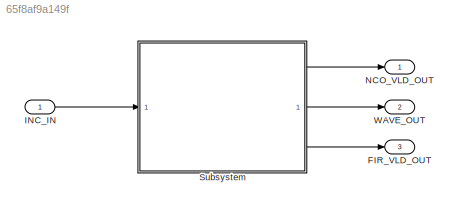
MODEL slx_65f8af9a149f
KIND model
CONFIG AbsTol = auto
CONFIG EnableMultiTasking = off
CONFIG FixedStep = auto
CONFIG MaxStep = auto
CONFIG MinStep = auto
CONFIG RelTol = 1e-3
CONFIG SampleTimeConstraint = Unconstrained
CONFIG SolverName = VariableStepAuto
CONFIG StartTime = 0.0
CONFIG StopTime = 10.0
BLOCK [Outport] FIR_VLD_OUT
  Port = 3
  VectorParamsAs1DForOutWhenUnconnected = off
BLOCK [Inport] INC_IN
  OutDataTypeStr = uint32
BLOCK [Outport] NCO_VLD_OUT
  VectorParamsAs1DForOutWhenUnconnected = off
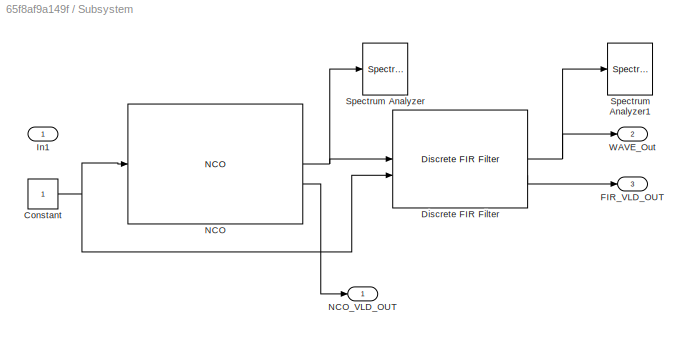
BLOCK [SubSystem] Subsystem
BLOCK [Constant] Subsystem/Constant
  OutDataTypeStr = boolean
  SampleTime = 0.001
BLOCK [Reference] Subsystem/Discrete FIR Filter  REF=dsphdlfiltering2/Discrete FIR Filter
  SourceBlock = dsphdlfiltering2/Discrete FIR Filter
  SourceType = Discrete FIR Filter
BLOCK [Outport] Subsystem/FIR_VLD_OUT
  Port = 3
  VectorParamsAs1DForOutWhenUnconnected = off
BLOCK [Inport] Subsystem/In1
BLOCK [Reference] Subsystem/NCO  REF=dsphdlsigops2/NCO
  LibrarySourceBlock = dsphdlsrcs2/NCO
  SourceBlock = dsphdlsigops2/NCO
  SourceType = NCO
BLOCK [Outport] Subsystem/NCO_VLD_OUT
  VectorParamsAs1DForOutWhenUnconnected = off
BLOCK [SpectrumAnalyzer] Subsystem/Spectrum Analyzer
  DefaultConfigurationName = spbscopes.SpectrumAnalyzerBlockCfg
  FrequencyInputRBWFromPort = 0
  FrequencyInputRBWPort = 0
  FrequencyScale = Log
  FrequencySpan = Start and stop frequencies
  FrequencyVectorFromPort = 0
  FrequencyVectorPort = 0
  GraphicalSettings = {"GraphicalSettings":{"Style":{"BackgroundColor":[0.1568627450980392,0.1568627450980392,0.1568627450980392],"AxesColor":[0,0,0],"LabelsColor":[0.6862745098039216,0.6862745098039216,0.6862745098039216],"PreserveColors":false,"Visible":[true],"LineStyle":["-"],"LineColor":[[1,1,0.06666666666666667]],"LineWidth":[1.5],"Marker":["none"],"FontSize":"small"},"Cursors":{"Enabled":false,"XLocation":[2,8],...<+831ch>
  IsFrequencyInputMode = 0
  PlotAsTwoSidedSpectrum = off
  SampleRate = 44.1e3
  SampleRateSource = Property
  ScopeFrameLocation = window
  ScopeSpecificationString = spbscopes.SpectrumAnalyzerBlockCfg('CurrentConfiguration', extmgr.ConfigurationSet(extmgr.Configuration('Core','General UI',true),extmgr.Configuration('Core','Source UI',true),extmgr.Configuration('Sources','WiredSimulink',true),extmgr.Configuration('Visuals','Spectrum',true,'AxesProperties',struct('Color',{[0 0 0],[0 0 0]},'XColor',{[0.686274509803922 0.686274509803922 0.686274509803922],[0.68627...<+1720ch>
  StartFrequency = 20
  StopFrequency = 20e3
  WasSavedAsWebScope = on
  WindowPosition = [368.000000,182.000000,800.000000,500.000000,]
  YLimits = [-85.99401411,40.26392201]
BLOCK [SpectrumAnalyzer] Subsystem/Spectrum Analyzer1
  DefaultConfigurationName = spbscopes.SpectrumAnalyzerBlockCfg
  FrequencyInputRBWFromPort = 0
  FrequencyInputRBWPort = 0
  FrequencyScale = Log
  FrequencySpan = Start and stop frequencies
  FrequencyVectorFromPort = 0
  FrequencyVectorPort = 0
  GraphicalSettings = {"GraphicalSettings":{"Style":{"BackgroundColor":[0.1568627450980392,0.1568627450980392,0.1568627450980392],"AxesColor":[0,0,0],"LabelsColor":[0.6862745098039216,0.6862745098039216,0.6862745098039216],"PreserveColors":false,"Visible":[true],"LineStyle":["-"],"LineColor":[[1,1,0.06666666666666667]],"LineWidth":[1.5],"Marker":["none"],"FontSize":"small"},"Cursors":{"Enabled":false,"XLocation":[2,8],...<+831ch>
  IsFrequencyInputMode = 0
  PlotAsTwoSidedSpectrum = off
  SampleRate = 44.1e3
  SampleRateSource = Property
  ScopeFrameLocation = window
  ScopeSpecificationString = spbscopes.SpectrumAnalyzerBlockCfg('CurrentConfiguration', extmgr.ConfigurationSet(extmgr.Configuration('Core','General UI',true),extmgr.Configuration('Core','Source UI',true),extmgr.Configuration('Sources','WiredSimulink',true),extmgr.Configuration('Visuals','Spectrum',true,'AxesProperties',struct('Color',{[0 0 0],[0 0 0]},'XColor',{[0.686274509803922 0.686274509803922 0.686274509803922],[0.68627...<+1720ch>
  StartFrequency = 20
  StopFrequency = 20e3
  Visible = on
  WasSavedAsWebScope = on
  WindowPosition = [368.000000,182.000000,800.000000,500.000000,]
  YLimits = [-86.14603274,40.2176747]
BLOCK [Outport] Subsystem/WAVE_Out
  Port = 2
  VectorParamsAs1DForOutWhenUnconnected = off
BLOCK [Outport] WAVE_OUT
  Port = 2
  VectorParamsAs1DForOutWhenUnconnected = off
LINE INC_IN:1 -> Subsystem:1
NET Subsystem/Constant:1 -> Subsystem/Discrete FIR Filter:2, Subsystem/NCO:1
NET Subsystem/Discrete FIR Filter:1 -> Subsystem/Spectrum Analyzer1:1, Subsystem/WAVE_Out:1
LINE Subsystem/Discrete FIR Filter:2 -> Subsystem/FIR_VLD_OUT:1
NET Subsystem/NCO:1 -> Subsystem/Discrete FIR Filter:1, Subsystem/Spectrum Analyzer:1
LINE Subsystem/NCO:2 -> Subsystem/NCO_VLD_OUT:1
LINE Subsystem:1 -> NCO_VLD_OUT:1
LINE Subsystem:2 -> WAVE_OUT:1
LINE Subsystem:3 -> FIR_VLD_OUT:1
note: NET lines group one-source signal fan-out (src -> all destinations, sorted); 1:1 wires keep LINE
